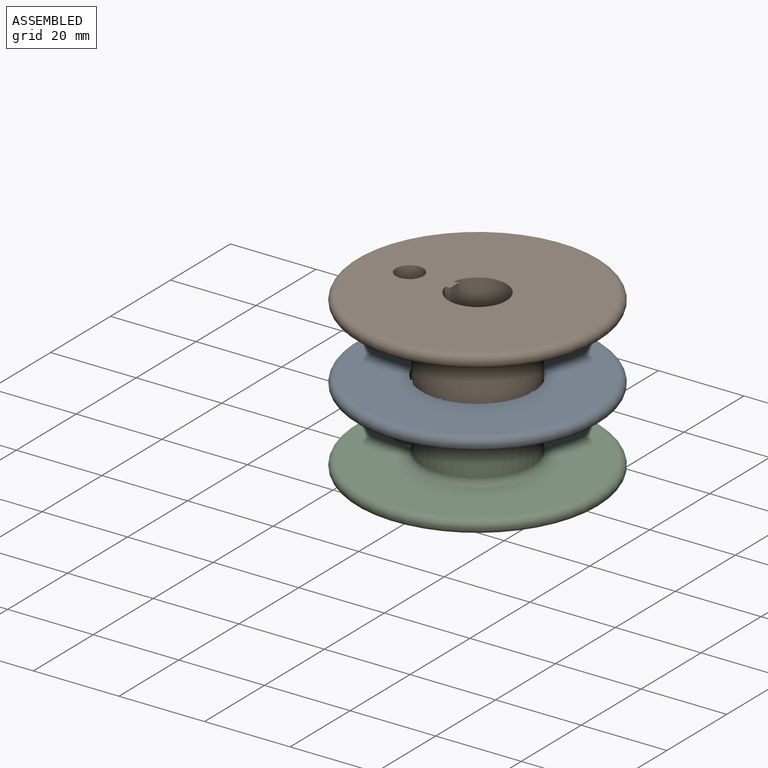
[diagram: assembled view]
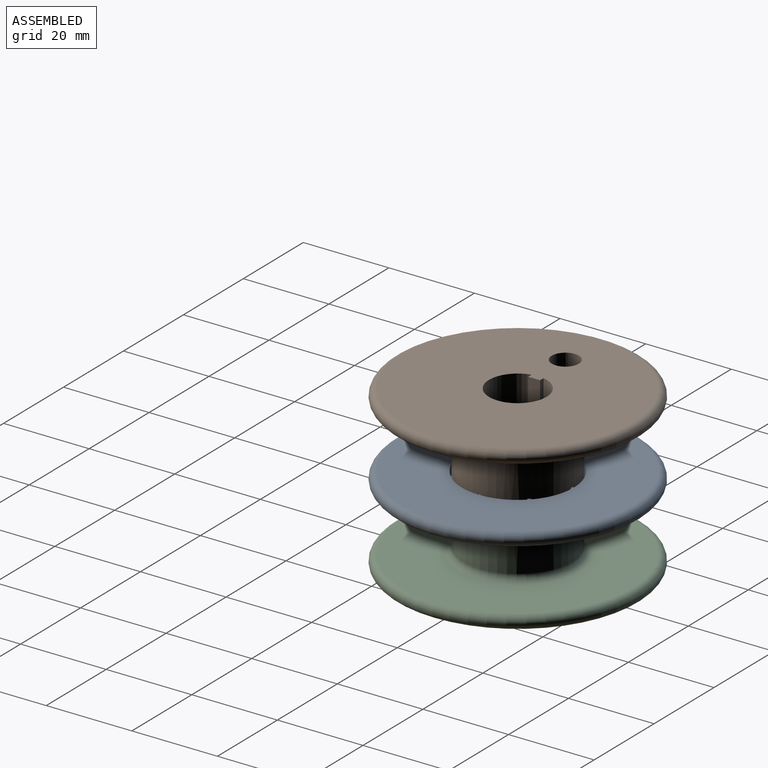
[diagram: assembled view, second angle]
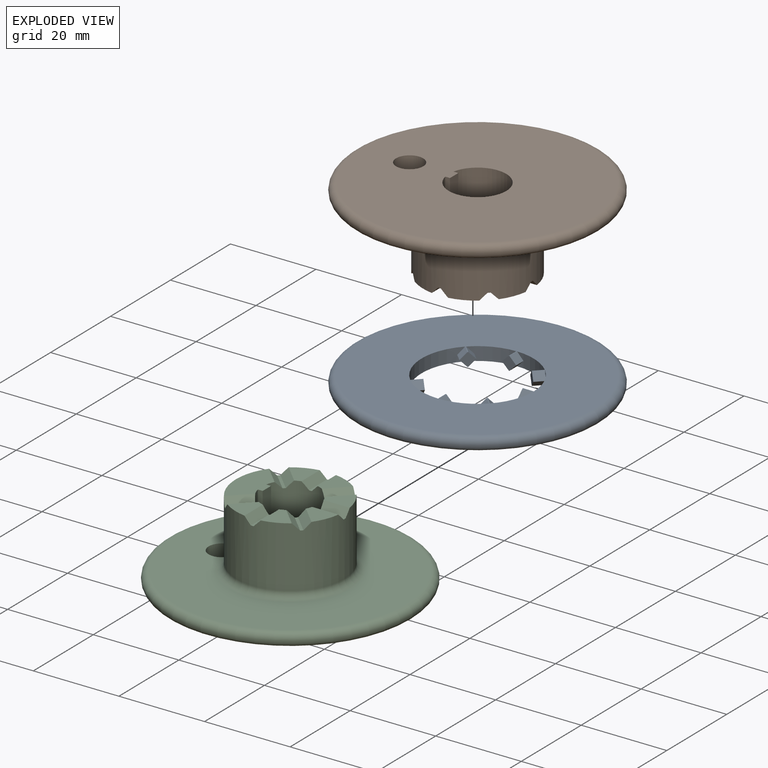
[diagram: exploded view]
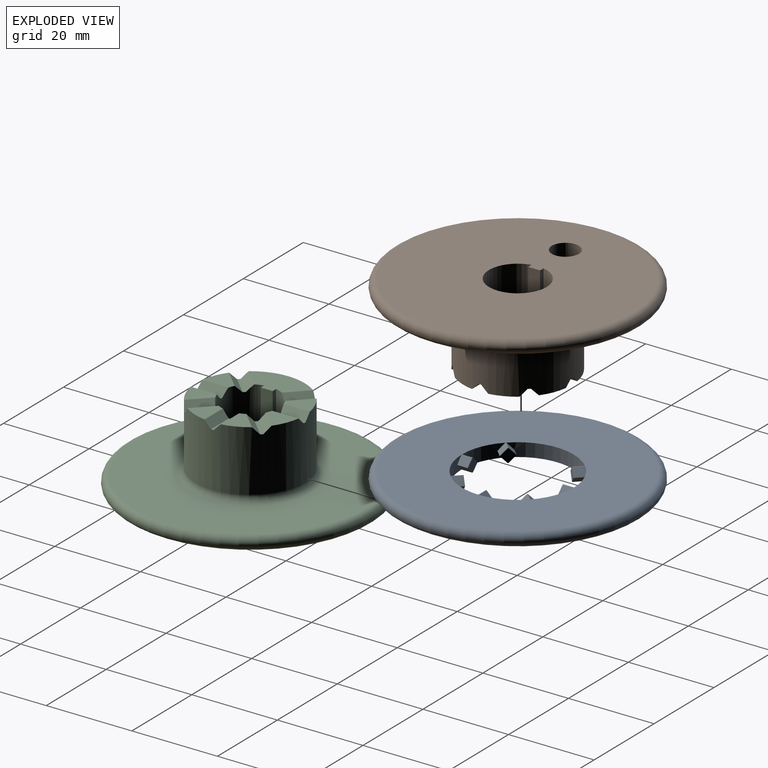
[diagram: exploded view, second angle]
ASSEMBLY  parts=3 mates=2
PART A: 45 faces, bbox 61.9x61.9x3.1 mm
  f0: cylinder r=13.08mm len=9.1mm, axis (0,0,-1), area 26.6mm2, adj f7,f8,f27,f28,f43,f44
  f1: cylinder r=13.08mm len=9.1mm, axis (0,0,-1), area 26.6mm2, adj f7,f8,f35,f36,f39,f40
  f2: cylinder r=13.08mm len=9.1mm, axis (0,0,-1), area 26.6mm2, adj f7,f8,f33,f34,f37,f38
  f3: cylinder r=13.08mm len=9.1mm, axis (0,0,-1), area 26.6mm2, adj f7,f8,f17,f18,f29,f30
  f4: cylinder r=13.08mm len=9.1mm, axis (0,0,-1), area 26.6mm2, adj f7,f8,f19,f20,f31,f32
  f5: cylinder r=13.08mm len=9.1mm, axis (0,0,-1), area 26.6mm2, adj f7,f8,f21,f22,f23,f24
  f6: cylinder r=13.08mm len=12.99mm, axis (0,0,-1), area 58.7mm2, adj f7,f8,f25,f26,f41,f42
  f7: plane 54.03x54.03mm, normal (0,0,1), area 1758mm2, adj f0,f1,f2,f3,f4,f5,f6,f9
  f8: plane 54.03x54.03mm, normal (0,0,-1), area 1758mm2, adj f0,f1,f2,f3,f4,f5,f6,f9
  f9: plane 3.3x3.12mm, normal (0,-1,0), area 5.4mm2, adj f7,f8,f23,f24,f25,f26
  f10: plane 3.12x2.34mm, normal (-0.71,-0.71,0), area 5.4mm2, adj f7,f8,f19,f20,f21,f22
  f11: plane 3.3x3.12mm, normal (-1,0,0), area 5.4mm2, adj f7,f8,f29,f30,f31,f32
  f12: plane 3.12x2.34mm, normal (-0.71,0.71,0), area 5.4mm2, adj f7,f8,f17,f18,f33,f34
  f13: plane 3.3x3.12mm, normal (0,1,0), area 5.4mm2, adj f7,f8,f35,f36,f37,f38
  f14: plane 3.12x2.34mm, normal (0.71,0.71,0), area 5.4mm2, adj f7,f8,f27,f28,f39,f40
  f15: plane 3.3x3.12mm, normal (1,0,0), area 5.4mm2, adj f7,f8,f41,f42,f43,f44
  f16: torus R=27.01mm, axis (0,0,1), area 863.6mm2, adj f7,f8
  f17: plane 2.9x2.83mm, normal (0.5,0.5,-0.71), area 5.5mm2, adj f3,f8,f12,f18
  f18: plane 2.9x2.83mm, normal (0.5,0.5,0.71), area 5.5mm2, adj f3,f7,f12,f17
  f19: plane 2.9x2.83mm, normal (0.5,-0.5,-0.71), area 5.5mm2, adj f4,f8,f10,f20
  f20: plane 2.9x2.83mm, normal (0.5,-0.5,0.71), area 5.5mm2, adj f4,f7,f10,f19
  f21: plane 2.9x2.83mm, normal (-0.5,0.5,-0.71), area 5.5mm2, adj f5,f8,f10,f22
  f22: plane 2.9x2.83mm, normal (-0.5,0.5,0.71), area 5.5mm2, adj f5,f7,f10,f21
  f23: plane 2.54x1.57mm, normal (0.71,0,-0.71), area 5.5mm2, adj f5,f8,f9,f24
  f24: plane 2.54x1.57mm, normal (0.71,0,0.71), area 5.5mm2, adj f5,f7,f9,f23
  f25: plane 2.54x1.57mm, normal (-0.71,0,-0.71), area 5.5mm2, adj f6,f8,f9,f26
  f26: plane 2.54x1.57mm, normal (-0.71,0,0.71), area 5.5mm2, adj f6,f7,f9,f25
  f27: plane 2.9x2.83mm, normal (-0.5,0.5,-0.71), area 5.5mm2, adj f0,f8,f14,f28
  f28: plane 2.9x2.83mm, normal (-0.5,0.5,0.71), area 5.5mm2, adj f0,f7,f14,f27
  f29: plane 2.54x1.57mm, normal (0,-0.71,-0.71), area 5.5mm2, adj f3,f8,f11,f30
  f30: plane 2.54x1.57mm, normal (0,-0.71,0.71), area 5.5mm2, adj f3,f7,f11,f29
  f31: plane 2.54x1.57mm, normal (0,0.71,-0.71), area 5.5mm2, adj f4,f8,f11,f32
  f32: plane 2.54x1.57mm, normal (0,0.71,0.71), area 5.5mm2, adj f4,f7,f11,f31
  f33: plane 2.9x2.83mm, normal (-0.5,-0.5,-0.71), area 5.5mm2, adj f2,f8,f12,f34
  f34: plane 2.9x2.83mm, normal (-0.5,-0.5,0.71), area 5.5mm2, adj f2,f7,f12,f33
  f35: plane 2.54x1.57mm, normal (-0.71,0,-0.71), area 5.5mm2, adj f1,f8,f13,f36
  f36: plane 2.54x1.57mm, normal (-0.71,0,0.71), area 5.5mm2, adj f1,f7,f13,f35
  f37: plane 2.54x1.57mm, normal (0.71,0,0.71), area 5.5mm2, adj f2,f7,f13,f38
  f38: plane 2.54x1.57mm, normal (0.71,0,-0.71), area 5.5mm2, adj f2,f8,f13,f37
  f39: plane 2.9x2.83mm, normal (0.5,-0.5,-0.71), area 5.5mm2, adj f1,f8,f14,f40
  f40: plane 2.9x2.83mm, normal (0.5,-0.5,0.71), area 5.5mm2, adj f1,f7,f14,f39
  f41: plane 2.54x1.57mm, normal (0,0.71,0.71), area 5.5mm2, adj f6,f7,f15,f42
  f42: plane 2.54x1.57mm, normal (0,0.71,-0.71), area 5.5mm2, adj f6,f8,f15,f41
  f43: plane 2.54x1.57mm, normal (0,-0.71,0.71), area 5.5mm2, adj f0,f7,f15,f44
  f44: plane 2.54x1.57mm, normal (0,-0.71,-0.71), area 5.5mm2, adj f0,f8,f15,f43
PART B: 40 faces, bbox 61.9x61.9x19.1 mm
  f0: plane 15.06x7.24mm, normal (0,0,1), area 71.6mm2, adj f7,f8,f9,f10,f13,f31,f37
  f1: plane 6.64x5.63mm, normal (0,0,1), area 22.6mm2, adj f7,f13,f28,f30
  f2: plane 6.64x5.63mm, normal (0,0,1), area 22.6mm2, adj f7,f13,f27,f29
  f3: plane 6.64x5.63mm, normal (0,0,1), area 22.6mm2, adj f7,f13,f26,f33
  f4: plane 6.64x5.63mm, normal (0,0,1), area 22.6mm2, adj f7,f13,f32,f34
  f5: plane 6.64x5.63mm, normal (0,0,1), area 22.6mm2, adj f7,f13,f35,f38
  f6: plane 6.64x5.63mm, normal (0,0,1), area 22.6mm2, adj f7,f13,f36,f39
  f7: cylinder r=6.73mm len=19.05mm, axis (0,0,-1), area 727.1mm2, adj f0,f1,f2,f3,f4,f5,f6,f8
  f8: plane 19.05x1.12mm, normal (0,-1,0), area 21.4mm2, adj f0,f7,f9,f11
  f9: plane 19.05x2.79mm, normal (1,0,0), area 53.2mm2, adj f0,f8,f10,f11
  f10: plane 19.05x1.12mm, normal (0,1,0), area 21.4mm2, adj f0,f7,f9,f11
  f11: plane 53.98x53.98mm, normal (0,0,-1), area 2117.5mm2, adj f7,f8,f9,f10,f14,f22
  f12: plane 53.98x53.98mm, normal (0,0,1), area 1620.9mm2, adj f14,f22,f24
  f13: cylinder r=12.7mm len=25.4mm, axis (0,0,-1), area 1117.9mm2, adj f0,f1,f2,f3,f4,f5,f6,f15
  f14: cylinder r=3.17mm len=6.35mm, axis (0,0,1), area 63.3mm2, adj f11,f12,f23,f25
  f15: plane 4.67x4.67mm, normal (0,0,1), area 3.8mm2, adj f7,f13,f36,f37
  f16: plane 5.98x0.64mm, normal (0,0,1), area 3.8mm2, adj f7,f13,f38,f39
  f17: plane 4.67x4.67mm, normal (0,0,1), area 3.8mm2, adj f7,f13,f34,f35
  f18: plane 5.98x0.64mm, normal (0,0,1), area 3.8mm2, adj f7,f13,f32,f33
  f19: plane 4.67x4.67mm, normal (0,0,1), area 3.8mm2, adj f7,f13,f26,f29
  f20: plane 5.98x0.64mm, normal (0,0,1), area 3.8mm2, adj f7,f13,f27,f30
  f21: plane 4.67x4.67mm, normal (0,0,1), area 3.8mm2, adj f7,f13,f28,f31
  f22: torus R=26.99mm, axis (0,0,1), area 877.3mm2, adj f11,f12
  f23: bspline ~2.65x1.69mm, area 2.9mm2, adj f13,f14,f24
  f24: torus R=14.29mm, axis (0,0,1), area 195.9mm2, adj f12,f13,f23,f25
  f25: bspline ~2.65x1.69mm, area 2.9mm2, adj f13,f14,f24
  f26: plane 5.55x5.26mm, normal (-0.5,0.5,0.71), area 13.5mm2, adj f3,f7,f13,f19
  f27: plane 6.26x1.6mm, normal (-0.71,0,0.71), area 13.5mm2, adj f2,f7,f13,f20
  f28: plane 5.55x5.26mm, normal (-0.5,-0.5,0.71), area 13.5mm2, adj f1,f7,f13,f21
  f29: plane 5.55x5.26mm, normal (0.5,-0.5,0.71), area 13.5mm2, adj f2,f7,f13,f19
  f30: plane 6.26x1.6mm, normal (0.71,0,0.71), area 13.5mm2, adj f1,f7,f13,f20
  f31: plane 5.55x5.26mm, normal (0.5,0.5,0.71), area 13.5mm2, adj f0,f7,f13,f21
  f32: plane 6.26x1.6mm, normal (0,0.71,0.71), area 13.5mm2, adj f4,f7,f13,f18
  f33: plane 6.26x1.6mm, normal (0,-0.71,0.71), area 13.5mm2, adj f3,f7,f13,f18
  f34: plane 5.55x5.26mm, normal (-0.5,-0.5,0.71), area 13.5mm2, adj f4,f7,f13,f17
  f35: plane 5.55x5.26mm, normal (0.5,0.5,0.71), area 13.5mm2, adj f5,f7,f13,f17
  f36: plane 5.55x5.26mm, normal (-0.5,0.5,0.71), area 13.5mm2, adj f6,f7,f13,f15
  f37: plane 5.55x5.26mm, normal (0.5,-0.5,0.71), area 13.5mm2, adj f0,f7,f13,f15
  f38: plane 6.26x1.6mm, normal (-0.71,0,0.71), area 13.5mm2, adj f5,f7,f13,f16
  f39: plane 6.26x1.6mm, normal (0.71,0,0.71), area 13.5mm2, adj f6,f7,f13,f16
PART C: same geometry as B
PLACE A rot(axis=(0,0,1),45.1deg) t=(-0.23,0,17.46)mm
PLACE B rot(axis=(1,0,0),180deg) t=(-0.23,0,38.05)mm
PLACE C t=(-0.23,0,0)mm
MATE cylindrical C.f7 <-> A.f0  axis (0,0,-1) through (-0.23,0,19.05)mm
MATE cylindrical B.f7 <-> C.f7  axis (0,0,1) through (-0.23,0,28.52)mm
